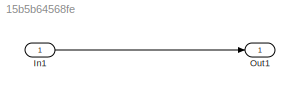
MODEL slx_15b5b64568fe
KIND model
CONFIG PreLoadFcn = phs = get_param([gcs,'/In1'],'PortHandles');\nset_param(phs.Outport,'ConnectionCallback','connect_msg');
BLOCK [Inport] In1
  IconDisplay = Port number
BLOCK [Outport] Out1
  IconDisplay = Port number
LINE In1:1 -> Out1:1
